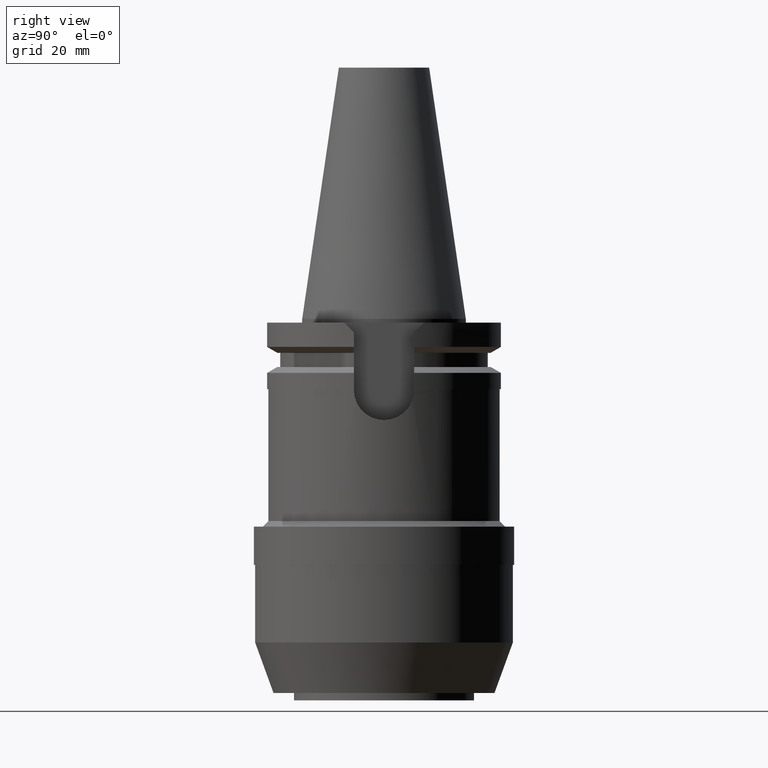
[diagram: clean part render]
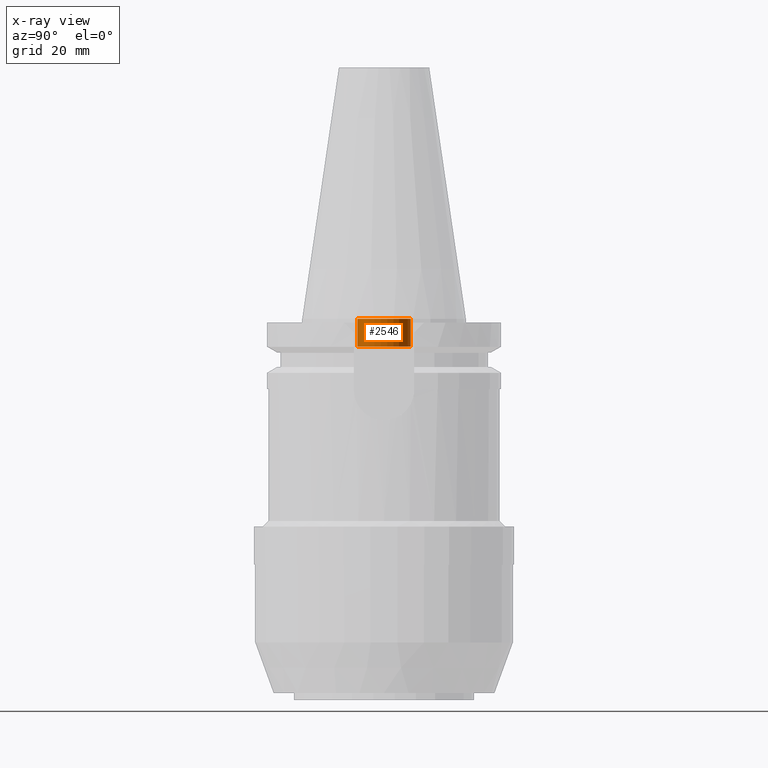
[diagram: x-ray — body ghosted, one internal face saturated and labeled with its STEP entity id]
A machine part, right view, then the same camera in x-ray: the body is ghosted and one INTERNAL B-rep face — a face not visible from any outside direction — is saturated and labeled: STEP entity #2546.
In plain terms, the highlighted cylindrical surface (edge-blend (fillet) strip) has radius 7.25 mm, axis along (0, 0, 1).
Its self-contained STEP definition (entity closure, byte-faithful):
#1080=CARTESIAN_POINT('',(0.E0,0.E0,-7.6E0));
#1081=DIRECTION('',(0.E0,0.E0,-1.E0));
#1082=DIRECTION('',(0.E0,1.E0,0.E0));
#1083=AXIS2_PLACEMENT_3D('',#1080,#1081,#1082);
#1088=DIRECTION('',(0.E0,0.E0,1.E0));
#1089=VECTOR('',#1088,7.6E0);
#1090=CARTESIAN_POINT('',(0.E0,-7.25E0,-7.6E0));
#1091=LINE('',#1090,#1089);
#1103=DIRECTION('',(0.E0,0.E0,1.E0));
#1104=VECTOR('',#1103,7.6E0);
#1105=CARTESIAN_POINT('',(0.E0,7.25E0,-7.6E0));
#1106=LINE('',#1105,#1104);
#1117=CARTESIAN_POINT('',(0.E0,0.E0,9.947598300641E-14));
#1118=DIRECTION('',(0.E0,0.E0,1.E0));
#1119=DIRECTION('',(0.E0,-1.E0,0.E0));
#1120=AXIS2_PLACEMENT_3D('',#1117,#1118,#1119);
#1653=CARTESIAN_POINT('',(0.E0,-7.25E0,-7.6E0));
#1654=CARTESIAN_POINT('',(0.E0,7.25E0,-7.6E0));
#1655=VERTEX_POINT('',#1653);
#1656=VERTEX_POINT('',#1654);
#1657=CARTESIAN_POINT('',(0.E0,7.25E0,9.947598300641E-14));
#1658=VERTEX_POINT('',#1657);
#1659=CARTESIAN_POINT('',(0.E0,-7.25E0,9.947598300641E-14));
#1660=VERTEX_POINT('',#1659);
#2534=CARTESIAN_POINT('',(0.E0,0.E0,-1.121925E2));
#2535=DIRECTION('',(0.E0,0.E0,1.E0));
#2536=DIRECTION('',(0.E0,1.E0,0.E0));
#2537=AXIS2_PLACEMENT_3D('',#2534,#2535,#2536);
#2538=CYLINDRICAL_SURFACE('',#2537,7.25E0);
#2539=ORIENTED_EDGE('',*,*,#2524,.T.);
#2541=ORIENTED_EDGE('',*,*,#2540,.F.);
#2542=ORIENTED_EDGE('',*,*,#2527,.F.);
#2543=ORIENTED_EDGE('',*,*,#2514,.F.);
#2544=EDGE_LOOP('',(#2539,#2541,#2542,#2543));
#2545=FACE_OUTER_BOUND('',#2544,.F.);
#1084=CIRCLE('',#1083,7.25E0);
#1121=CIRCLE('',#1120,7.25E0);
#2514=EDGE_CURVE('',#1656,#1655,#1084,.T.);
#2524=EDGE_CURVE('',#1656,#1658,#1106,.T.);
#2527=EDGE_CURVE('',#1655,#1660,#1091,.T.);
#2540=EDGE_CURVE('',#1660,#1658,#1121,.T.);
#2546=ADVANCED_FACE('',(#2545),#2538,.F.);